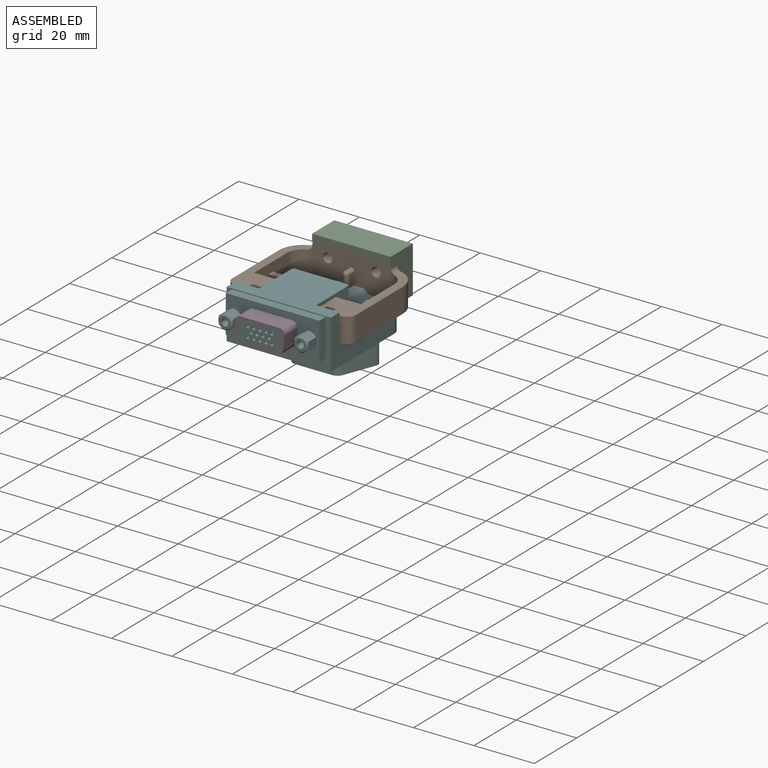
[diagram: assembled view]
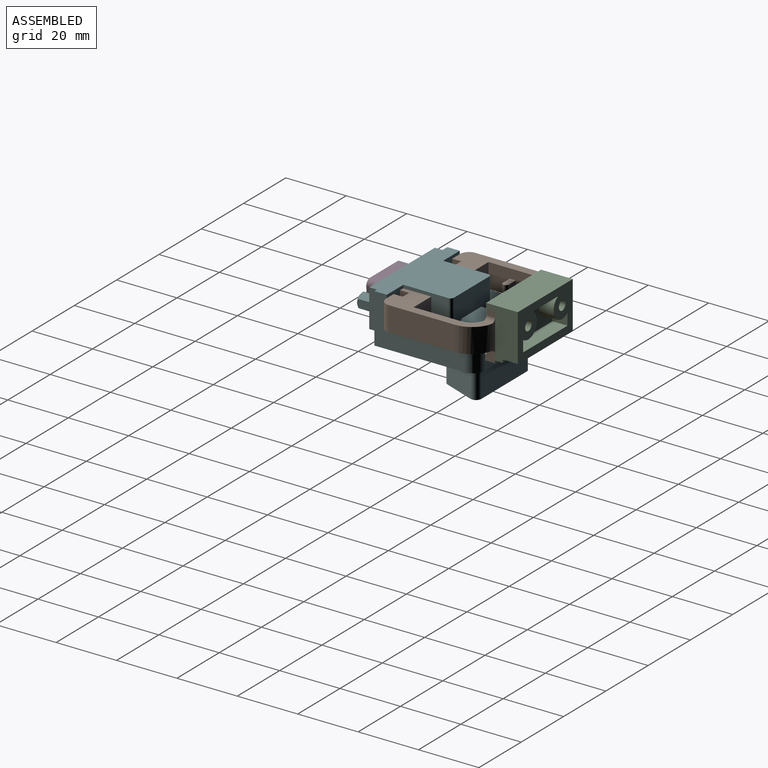
[diagram: assembled view, second angle]
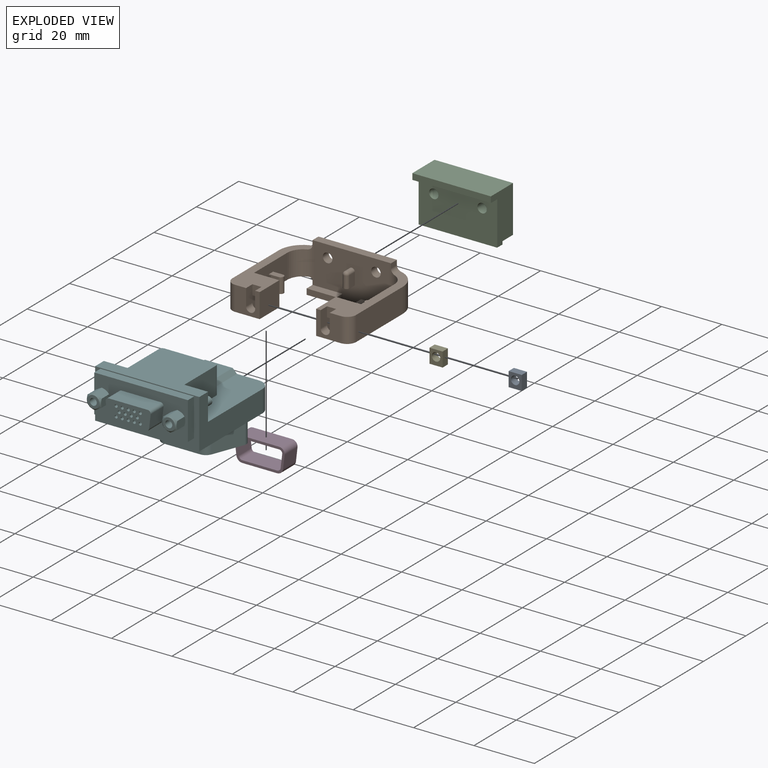
[diagram: exploded view]
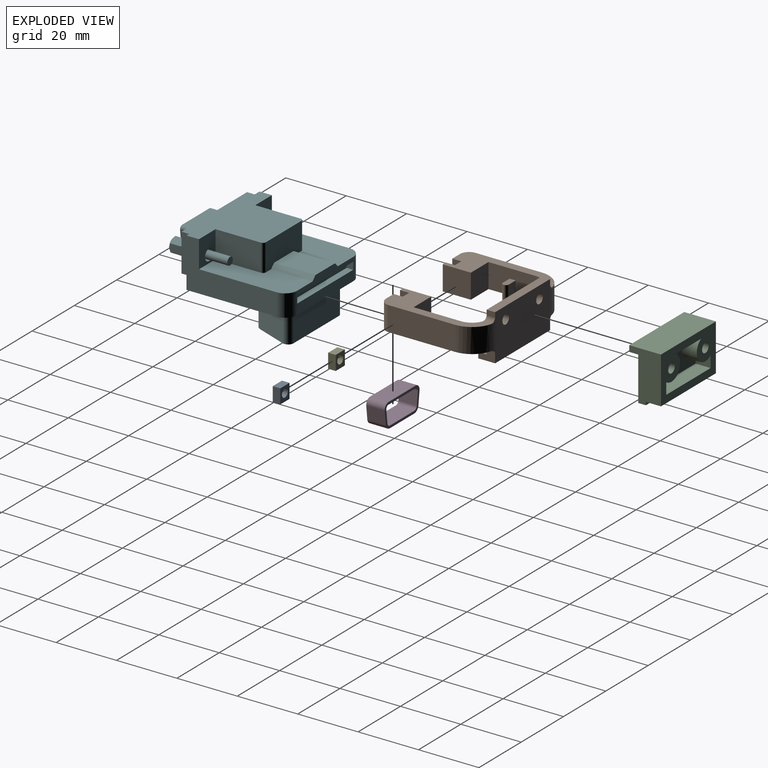
[diagram: exploded view, second angle]
ASSEMBLY  parts=6 mates=5
PART A: 7 faces, bbox 4.4x2.5x4.8 mm
  f0: cylinder r=1.4mm len=2.8mm, axis (0,-1,0), area 22mm2, adj f1,f6
  f1: plane 4.8x4.35mm, normal (0,-1,0), area 14.7mm2, adj f0,f2,f3,f4,f5
  f2: plane 4.35x2.5mm, normal (0,0,1), area 10.9mm2, adj f1,f3,f5,f6
  f3: plane 4.8x2.5mm, normal (-1,0,0), area 12mm2, adj f1,f2,f4,f6
  f4: plane 4.35x2.5mm, normal (0,0,-1), area 10.9mm2, adj f1,f3,f5,f6
  f5: plane 4.8x2.5mm, normal (1,0,0), area 12mm2, adj f1,f2,f4,f6
  f6: plane 4.8x4.35mm, normal (0,1,0), area 14.7mm2, adj f0,f2,f3,f4,f5
PART B: 80 faces, bbox 41x33x15.3 mm
  f0: cylinder r=1.57mm len=3.15mm, axis (0,-1,0), area 27.7mm2, adj f74,f79
  f1: cylinder r=1.57mm len=3.15mm, axis (0,-1,0), area 27.7mm2, adj f74,f79
  f2: cylinder r=1mm len=2.5mm, axis (0,1,0), area 7.9mm2, adj f6,f55,f57,f74
  f3: cylinder r=1.5mm len=3mm, axis (0,-1,0), area 14.1mm2, adj f36,f43,f47,f48
  f4: cylinder r=1mm len=5mm, axis (0,0,-1), area 15.7mm2, adj f13,f40,f41,f67
  f5: cylinder r=1.5mm len=3mm, axis (0,-1,0), area 14.1mm2, adj f17,f29,f31,f32
  f6: sphere r=1mm, area 3.1mm2, adj f2,f15
  f7: plane 4.8x0.73mm, normal (0,-1,0), area 3.5mm2, adj f10,f18,f19,f58
  f8: plane 4.8x0.73mm, normal (0,-1,0), area 3.5mm2, adj f10,f16,f21,f58
  f9: plane 4.2x2mm, normal (0,0,1), area 8mm2, adj f22,f23,f24,f26
  f10: plane 5.3x4.35mm, normal (0,0,-1), area 19mm2, adj f7,f8,f16,f17,f18,f19,f20,f21
  f11: plane 4.8x0.73mm, normal (0,-1,0), area 3.5mm2, adj f14,f34,f35,f67
  f12: plane 4.8x0.73mm, normal (0,-1,0), area 3.5mm2, adj f14,f37,f38,f67
  f13: plane 4.2x2mm, normal (0,0,1), area 8mm2, adj f4,f40,f41,f46
  f14: plane 5.3x4.35mm, normal (0,0,-1), area 19mm2, adj f11,f12,f34,f35,f36,f37,f38,f39
  f15: cylinder r=1mm len=4mm, axis (0,0,-1), area 12.6mm2, adj f6,f55,f56,f57
  f16: plane 4.8x2.5mm, normal (-1,0,0), area 12mm2, adj f8,f10,f17,f58
  f17: plane 4.8x4.35mm, normal (0,1,0), area 10.7mm2, adj f5,f10,f16,f18,f29,f31,f58
  f18: plane 4.8x2.5mm, normal (1,0,0), area 12mm2, adj f7,f10,f17,f58
  f19: plane 4.8x2.8mm, normal (1,0,0), area 13.4mm2, adj f7,f10,f20,f58
  f20: plane 4.8x2.9mm, normal (0,-1,0), area 13.9mm2, adj f10,f19,f21,f58
  f21: plane 4.8x2.8mm, normal (-1,0,0), area 13.4mm2, adj f8,f10,f20,f58
  f22: plane 5x3.2mm, normal (0,-1,0), area 16mm2, adj f9,f23,f26,f58
  f23: cylinder r=1mm len=5mm, axis (0,0,-1), area 15.7mm2, adj f9,f22,f24,f58
  f24: plane 5x3.2mm, normal (0,1,0), area 16mm2, adj f9,f23,f26,f58
  f25: cylinder r=3mm len=8.1mm, axis (0,0,-1), area 38.2mm2, adj f32,f58,f59,f60
  f26: plane 15.7x8.1mm, normal (1,0,0), area 117.2mm2, adj f9,f22,f24,f27,f52,f58,f60
  f27: plane 8.35x8.1mm, normal (0,1,0), area 67.6mm2, adj f26,f28,f58,f60
  f28: plane 9.3x8.1mm, normal (1,0,0), area 75.3mm2, adj f27,f32,f58,f60
  f29: plane 5.5x3mm, normal (-1,0,0), area 16.5mm2, adj f5,f17,f30,f32,f60
  f30: plane 3.3x3mm, normal (0,-1,0), area 9.9mm2, adj f10,f29,f31,f60
  f31: plane 5.5x3mm, normal (1,0,0), area 16.5mm2, adj f5,f17,f30,f32,f60
  f32: plane 8.15x8.1mm, normal (0,-1,0), area 46mm2, adj f5,f25,f28,f29,f31,f58,f60
  f33: cylinder r=1mm len=3.01mm, axis (0,-1,0), area 4.5mm2, adj f52,f58,f62,f75
  f34: plane 4.8x2.8mm, normal (-1,0,0), area 13.4mm2, adj f11,f14,f39,f67
  f35: plane 4.8x2.5mm, normal (-1,0,0), area 12mm2, adj f11,f14,f36,f67
  f36: plane 4.8x4.35mm, normal (0,1,0), area 10.7mm2, adj f3,f14,f35,f37,f43,f48,f67
  f37: plane 4.8x2.5mm, normal (1,0,0), area 12mm2, adj f12,f14,f36,f67
  f38: plane 4.8x2.8mm, normal (1,0,0), area 13.4mm2, adj f12,f14,f39,f67
  f39: plane 4.8x2.9mm, normal (0,-1,0), area 13.9mm2, adj f14,f34,f38,f67
  f40: plane 5x3.2mm, normal (0,1,0), area 16mm2, adj f4,f13,f46,f67
  f41: plane 5x3.2mm, normal (0,-1,0), area 16mm2, adj f4,f13,f46,f67
  f42: cylinder r=1mm len=3.01mm, axis (0,-1,0), area 4.5mm2, adj f53,f67,f68,f77
  f43: plane 5.5x3mm, normal (1,0,0), area 16.5mm2, adj f3,f36,f47,f49,f70
  f44: plane 9.3x8.1mm, normal (-1,0,0), area 75.3mm2, adj f45,f47,f67,f70
  f45: plane 8.35x8.1mm, normal (0,1,0), area 67.6mm2, adj f44,f46,f67,f70
  f46: plane 15.7x8.1mm, normal (-1,0,0), area 117.2mm2, adj f13,f40,f41,f45,f53,f67,f70
  f47: plane 8.15x8.1mm, normal (0,-1,0), area 46mm2, adj f3,f43,f44,f48,f50,f67,f70
  f48: plane 5.5x3mm, normal (-1,0,0), area 16.5mm2, adj f3,f36,f47,f49,f70
  f49: plane 3.3x3mm, normal (0,-1,0), area 9.9mm2, adj f14,f43,f48,f70
  f50: cylinder r=3mm len=8.1mm, axis (0,0,-1), area 38.2mm2, adj f47,f67,f70,f71
  f51: plane 9.93x2.8mm, normal (0,0,1), area 27.8mm2, adj f52,f62,f63,f64,f74
  f52: cylinder r=5.2mm len=13.4mm, axis (0,0,1), area 69.5mm2, adj f26,f33,f51,f58,f60,f61,f62,f73
  f53: cylinder r=5.2mm len=13.4mm, axis (0,0,1), area 69.5mm2, adj f42,f46,f54,f67,f68,f69,f70,f72
  f54: plane 9.93x2.8mm, normal (0,0,1), area 27.8mm2, adj f53,f65,f66,f68,f74
  f55: plane 4x2.5mm, normal (-1,0,0), area 10mm2, adj f2,f15,f56,f74
  f56: plane 3.5x2mm, normal (0,0,-1), area 6.6mm2, adj f15,f55,f57,f74
  f57: plane 4x2.5mm, normal (1,0,0), area 10mm2, adj f2,f15,f56,f74
  f58: plane 32.86x11.15mm, normal (0,0,-1), area 159.5mm2, adj f7,f8,f16,f17,f18,f19,f20,f21
  f59: plane 22x8.1mm, normal (-1,0,0), area 178.2mm2, adj f25,f58,f60,f75
  f60: plane 32.75x11.15mm, normal (0,0,1), area 160.1mm2, adj f25,f26,f27,f28,f29,f30,f31,f32
  f61: cylinder r=1.5mm len=3.18mm, axis (0,-1,0), area 6.8mm2, adj f52,f60,f73,f75
  f62: plane 5.58x3.15mm, normal (-1,0,0), area 14.1mm2, adj f33,f51,f52,f63,f75,f76
  f63: plane 9.93x1.9mm, normal (0,-1,0), area 18.9mm2, adj f51,f62,f64,f76
  f64: plane 2.8x1.9mm, normal (1,0,0), area 5.3mm2, adj f51,f63,f74,f76
  f65: plane 2.8x1.9mm, normal (-1,0,0), area 5.3mm2, adj f54,f66,f74,f76
  f66: plane 9.93x1.9mm, normal (0,-1,0), area 18.9mm2, adj f54,f65,f68,f76
  f67: plane 32.86x11.15mm, normal (0,0,-1), area 159.5mm2, adj f4,f11,f12,f34,f35,f36,f37,f38
  f68: plane 5.58x3.15mm, normal (1,0,0), area 14.1mm2, adj f42,f53,f54,f66,f76,f77
  f69: cylinder r=1.5mm len=3.18mm, axis (0,-1,0), area 6.8mm2, adj f53,f70,f72,f77
  f70: plane 32.75x11.15mm, normal (0,0,1), area 160.1mm2, adj f43,f44,f45,f46,f47,f48,f49,f50
  f71: plane 22x8.1mm, normal (1,0,0), area 178.2mm2, adj f50,f67,f70,f77
  f72: plane 2.81x1.55mm, normal (1,0,0), area 4.4mm2, adj f53,f69,f77,f78
  f73: plane 2.81x1.55mm, normal (-1,0,0), area 4.4mm2, adj f52,f61,f75,f78
  f74: plane 25x15.3mm, normal (0,-1,0), area 321.5mm2, adj f0,f1,f2,f51,f52,f53,f54,f55
  f75: cylinder r=8mm len=15.3mm, axis (0,0,-1), area 106.1mm2, adj f33,f58,f59,f60,f61,f62,f73,f76
  f76: plane 26x5.6mm, normal (0,0,-1), area 128.4mm2, adj f62,f63,f64,f65,f66,f68,f74,f75
  f77: cylinder r=8mm len=15.3mm, axis (0,0,-1), area 106.1mm2, adj f42,f67,f68,f69,f70,f71,f72,f76
  f78: plane 26x2.82mm, normal (0,0,1), area 72.8mm2, adj f52,f53,f72,f73,f74,f75,f77,f79
  f79: plane 25x15.3mm, normal (0,1,0), area 366.9mm2, adj f0,f1,f75,f76,f77,f78
PART C: 19 faces, bbox 26x10.5x16.5 mm
  f0: cylinder r=1.55mm len=7.5mm, axis (0,-1,0), area 73mm2, adj f12,f18
  f1: cylinder r=1.55mm len=7.5mm, axis (0,-1,0), area 73mm2, adj f12,f18
  f2: cylinder r=4.05mm len=7.55mm, axis (0,1,0), area 66.4mm2, adj f4,f7,f8,f12
  f3: cylinder r=4.05mm len=7.55mm, axis (0,1,0), area 66.4mm2, adj f4,f5,f8,f12
  f4: plane 21x10.5mm, normal (0,1,0), area 134.1mm2, adj f2,f3,f5,f6,f7,f8
  f5: plane 5x3.81mm, normal (1,0,0), area 19.1mm2, adj f3,f4,f6,f12
  f6: plane 21x5mm, normal (0,0,-1), area 105mm2, adj f4,f5,f7,f12
  f7: plane 5x3.81mm, normal (-1,0,0), area 19.1mm2, adj f2,f4,f6,f12
  f8: plane 11.92x5mm, normal (0,0,1), area 59.6mm2, adj f2,f3,f4,f12
  f9: plane 26x1mm, normal (0,1,0), area 26mm2, adj f13,f14,f15,f17
  f10: plane 26x2mm, normal (0,-1,0), area 52mm2, adj f11,f15,f16,f17
  f11: plane 26x10.5mm, normal (0,0,-1), area 273mm2, adj f10,f12,f15,f17
  f12: plane 26x15.5mm, normal (0,1,0), area 253.8mm2, adj f0,f1,f2,f3,f5,f6,f7,f8
  f13: plane 26x5mm, normal (0,0,1), area 130mm2, adj f9,f12,f15,f17
  f14: plane 26x2.5mm, normal (0,0,1), area 65mm2, adj f9,f15,f17,f18
  f15: plane 16.5x10.5mm, normal (1,0,0), area 124.7mm2, adj f9,f10,f11,f12,f13,f14,f16,f18
  f16: plane 26x3mm, normal (0,0,1), area 78mm2, adj f10,f15,f17,f18
  f17: plane 16.5x10.5mm, normal (-1,0,0), area 124.7mm2, adj f9,f10,f11,f12,f13,f14,f16,f18
  f18: plane 26x14.5mm, normal (0,-1,0), area 361.9mm2, adj f0,f1,f14,f15,f16,f17
PART D: 18 faces, bbox 16.5x8.1x6.1 mm
  f0: cylinder r=1mm len=6.1mm, axis (0,0,-1), area 10.3mm2, adj f13,f15,f16,f17
  f1: cylinder r=1.8mm len=6.1mm, axis (0,0,-1), area 18.5mm2, adj f2,f8,f15,f16
  f2: plane 6.1x4.32mm, normal (-0.99,-0.12,0), area 26.5mm2, adj f1,f3,f15,f16
  f3: cylinder r=2mm len=6.1mm, axis (0,0,-1), area 17.8mm2, adj f2,f4,f15,f16
  f4: plane 11.5x6.1mm, normal (0,-1,0), area 70.2mm2, adj f3,f5,f15,f16
  f5: cylinder r=2mm len=6.1mm, axis (0,0,-1), area 17.8mm2, adj f4,f6,f15,f16
  f6: plane 6.1x4.32mm, normal (0.99,-0.12,0), area 26.5mm2, adj f5,f7,f15,f16
  f7: cylinder r=1.8mm len=6.1mm, axis (0,0,-1), area 18.5mm2, adj f6,f8,f15,f16
  f8: plane 12.9x6.1mm, normal (0,1,0), area 78.7mm2, adj f1,f7,f15,f16
  f9: plane 6.1x4.32mm, normal (-0.99,0.12,0), area 26.5mm2, adj f10,f14,f15,f16
  f10: cylinder r=1.2mm len=6.1mm, axis (0,0,-1), area 10.7mm2, adj f9,f11,f15,f16
  f11: plane 11.5x6.1mm, normal (0,1,0), area 70.2mm2, adj f10,f12,f15,f16
  f12: cylinder r=1.2mm len=6.1mm, axis (0,0,-1), area 10.7mm2, adj f11,f13,f15,f16
  f13: plane 6.1x4.32mm, normal (0.99,0.12,0), area 26.5mm2, adj f0,f12,f15,f16
  f14: cylinder r=1mm len=6.1mm, axis (0,0,-1), area 10.3mm2, adj f9,f15,f16,f17
  f15: plane 16.5x8.1mm, normal (0,0,1), area 34mm2, adj f0,f1,f2,f3,f4,f5,f6,f7
  f16: plane 16.5x8.1mm, normal (0,0,-1), area 34mm2, adj f0,f1,f2,f3,f4,f5,f6,f7
  f17: plane 12.9x6.1mm, normal (0,-1,0), area 78.7mm2, adj f0,f14,f15,f16
PART E: 7 faces, bbox 4.4x2.5x4.8 mm
  f0: cylinder r=1.4mm len=2.8mm, axis (0,-1,0), area 22mm2, adj f1,f6
  f1: plane 4.8x4.35mm, normal (0,-1,0), area 14.7mm2, adj f0,f2,f3,f4,f5
  f2: plane 4.35x2.5mm, normal (0,0,1), area 10.9mm2, adj f1,f3,f5,f6
  f3: plane 4.8x2.5mm, normal (-1,0,0), area 12mm2, adj f1,f2,f4,f6
  f4: plane 4.35x2.5mm, normal (0,0,-1), area 10.9mm2, adj f1,f3,f5,f6
  f5: plane 4.8x2.5mm, normal (1,0,0), area 12mm2, adj f1,f2,f4,f6
  f6: plane 4.8x4.35mm, normal (0,1,0), area 14.7mm2, adj f0,f2,f3,f4,f5
PART F: 154 faces, bbox 34.8x26.8x43.1 mm
  f0: cylinder r=1.9mm len=7.02mm, axis (0,0,1), area 83.8mm2, adj f90,f130
  f1: cylinder r=1.9mm len=7.02mm, axis (0,0,1), area 83.8mm2, adj f89,f124
  f2: cone r=2.72mm half-angle=45deg, axis (0,0,1), area 9.1mm2, adj f62,f63,f85,f86,f87,f88,f116
  f3: cone r=2.72mm half-angle=45deg, axis (0,0,1), area 9.1mm2, adj f60,f61,f81,f82,f83,f84,f116
  f4: cylinder r=0.5mm len=8.1mm, axis (0,1,0), area 25.4mm2, adj f78,f104
  f5: cylinder r=0.5mm len=8.1mm, axis (0,1,0), area 25.4mm2, adj f77,f104
  f6: cylinder r=0.5mm len=8.1mm, axis (0,1,0), area 25.4mm2, adj f76,f104
  f7: cylinder r=0.5mm len=8.1mm, axis (0,1,0), area 25.4mm2, adj f75,f104
  f8: cylinder r=0.5mm len=8.1mm, axis (0,1,0), area 25.4mm2, adj f74,f104
  f9: cylinder r=0.5mm len=8.1mm, axis (0,1,0), area 25.4mm2, adj f73,f104
  f10: cylinder r=0.5mm len=8.1mm, axis (0,1,0), area 25.4mm2, adj f72,f104
  f11: cylinder r=0.5mm len=8.1mm, axis (0,1,0), area 25.4mm2, adj f71,f104
  f12: cylinder r=0.5mm len=8.1mm, axis (0,1,0), area 25.4mm2, adj f70,f104
  f13: cylinder r=0.5mm len=8.1mm, axis (0,1,0), area 25.4mm2, adj f69,f104
  f14: cylinder r=0.5mm len=8.1mm, axis (0,1,0), area 25.4mm2, adj f68,f104
  f15: cylinder r=0.5mm len=8.1mm, axis (0,1,0), area 25.4mm2, adj f67,f104
  f16: cylinder r=0.5mm len=8.1mm, axis (0,1,0), area 25.4mm2, adj f66,f104
  f17: cylinder r=0.5mm len=8.1mm, axis (0,1,0), area 25.4mm2, adj f65,f104
  f18: cylinder r=0.5mm len=8.1mm, axis (0,1,0), area 25.4mm2, adj f64,f104
  f19: cylinder r=1mm len=6.1mm, axis (0,0,-1), area 10.3mm2, adj f80,f94,f95,f116
  f20: cylinder r=1.3mm len=14mm, axis (0,0,1), area 114.4mm2, adj f59,f90
  f21: cylinder r=1.3mm len=14mm, axis (0,0,1), area 114.4mm2, adj f58,f89
  f22: cone r=2.72mm half-angle=45deg, axis (0,0,-1), area 9.1mm2, adj f57,f62,f63,f85,f86,f87,f88
  f23: cone r=2.72mm half-angle=45deg, axis (0,0,-1), area 9.1mm2, adj f56,f60,f61,f81,f82,f83,f84
  f24: cylinder r=0.5mm len=6.5mm, axis (0,0,1), area 20.4mm2, adj f55,f80
  f25: cylinder r=0.5mm len=6.5mm, axis (0,0,1), area 20.4mm2, adj f54,f80
  f26: cylinder r=0.5mm len=6.5mm, axis (0,0,1), area 20.4mm2, adj f53,f80
  f27: cylinder r=0.5mm len=6.5mm, axis (0,0,1), area 20.4mm2, adj f52,f80
  f28: cylinder r=0.5mm len=6.5mm, axis (0,0,1), area 20.4mm2, adj f51,f80
  f29: cylinder r=0.5mm len=6.5mm, axis (0,0,1), area 20.4mm2, adj f50,f80
  f30: cylinder r=0.5mm len=6.5mm, axis (0,0,1), area 20.4mm2, adj f49,f80
  f31: cylinder r=0.5mm len=6.5mm, axis (0,0,1), area 20.4mm2, adj f48,f80
  f32: cylinder r=0.5mm len=6.5mm, axis (0,0,1), area 20.4mm2, adj f47,f80
  f33: cylinder r=0.5mm len=6.5mm, axis (0,0,1), area 20.4mm2, adj f46,f80
  f34: cylinder r=0.5mm len=6.5mm, axis (0,0,1), area 20.4mm2, adj f45,f80
  f35: cylinder r=0.5mm len=6.5mm, axis (0,0,1), area 20.4mm2, adj f44,f80
  f36: cylinder r=0.5mm len=6.5mm, axis (0,0,1), area 20.4mm2, adj f43,f80
  f37: cylinder r=0.5mm len=6.5mm, axis (0,0,1), area 20.4mm2, adj f42,f80
  f38: cylinder r=1.15mm len=3.5mm, axis (0,0,1), area 25.3mm2, adj f41,f57
  f39: cylinder r=1.15mm len=3.5mm, axis (0,0,1), area 25.3mm2, adj f40,f56
  f40: plane 2.3x2.3mm, normal (0,0,1), area 4.2mm2, adj f39
  f41: plane 2.3x2.3mm, normal (0,0,1), area 4.2mm2, adj f38
  f42: plane 1x1mm, normal (0,0,1), area 0.8mm2, adj f37
  f43: plane 1x1mm, normal (0,0,1), area 0.8mm2, adj f36
  f44: plane 1x1mm, normal (0,0,1), area 0.8mm2, adj f35
  f45: plane 1x1mm, normal (0,0,1), area 0.8mm2, adj f34
  f46: plane 1x1mm, normal (0,0,1), area 0.8mm2, adj f33
  f47: plane 1x1mm, normal (0,0,1), area 0.8mm2, adj f32
  f48: plane 1x1mm, normal (0,0,1), area 0.8mm2, adj f31
  f49: plane 1x1mm, normal (0,0,1), area 0.8mm2, adj f30
  f50: plane 1x1mm, normal (0,0,1), area 0.8mm2, adj f29
  f51: plane 1x1mm, normal (0,0,1), area 0.8mm2, adj f28
  f52: plane 1x1mm, normal (0,0,1), area 0.8mm2, adj f27
  f53: plane 1x1mm, normal (0,0,1), area 0.8mm2, adj f26
  f54: plane 1x1mm, normal (0,0,1), area 0.8mm2, adj f25
  f55: plane 1x1mm, normal (0,0,1), area 0.8mm2, adj f24
  f56: plane 4.07x4.07mm, normal (0,0,1), area 8.9mm2, adj f23,f39
  f57: plane 4.07x4.07mm, normal (0,0,1), area 8.9mm2, adj f22,f38
  f58: plane 2.6x2.6mm, normal (0,0,-1), area 5.3mm2, adj f21
  f59: plane 2.6x2.6mm, normal (0,0,-1), area 5.3mm2, adj f20
  f60: plane 4.39x2.98mm, normal (-1,0,0), area 10.5mm2, adj f3,f23,f82,f83
  f61: plane 4.39x2.98mm, normal (1,0,0), area 10.5mm2, adj f3,f23,f81,f84
  f62: plane 4.39x2.98mm, normal (-1,0,0), area 10.5mm2, adj f2,f22,f86,f87
  f63: plane 4.39x2.98mm, normal (1,0,0), area 10.5mm2, adj f2,f22,f85,f88
  f64: sphere r=0.5mm, area 1.6mm2, adj f18
  f65: sphere r=0.5mm, area 1.6mm2, adj f17
  f66: sphere r=0.5mm, area 1.6mm2, adj f16
  f67: sphere r=0.5mm, area 1.6mm2, adj f15
  f68: sphere r=0.5mm, area 1.6mm2, adj f14
  f69: sphere r=0.5mm, area 1.6mm2, adj f13
  f70: sphere r=0.5mm, area 1.6mm2, adj f12
  f71: sphere r=0.5mm, area 1.6mm2, adj f11
  f72: sphere r=0.5mm, area 1.6mm2, adj f10
  f73: sphere r=0.5mm, area 1.6mm2, adj f9
  f74: sphere r=0.5mm, area 1.6mm2, adj f8
  f75: sphere r=0.5mm, area 1.6mm2, adj f7
  f76: sphere r=0.5mm, area 1.6mm2, adj f6
  f77: sphere r=0.5mm, area 1.6mm2, adj f5
  f78: sphere r=0.5mm, area 1.6mm2, adj f4
  f79: cylinder r=1mm len=6.1mm, axis (0,0,-1), area 10.3mm2, adj f80,f95,f96,f116
  f80: plane 14.9x6.5mm, normal (0,0,1), area 81.5mm2, adj f19,f24,f25,f26,f27,f28,f29,f30
  f81: plane 4.12x2.35mm, normal (0.5,-0.87,0), area 10.5mm2, adj f3,f23,f61,f82
  f82: plane 4.12x2.35mm, normal (-0.5,-0.87,0), area 10.5mm2, adj f3,f23,f60,f81
  f83: plane 4.12x2.35mm, normal (-0.5,0.87,0), area 10.5mm2, adj f3,f23,f60,f84
  f84: plane 4.12x2.35mm, normal (0.5,0.87,0), area 10.5mm2, adj f3,f23,f61,f83
  f85: plane 4.12x2.35mm, normal (0.5,-0.87,0), area 10.5mm2, adj f2,f22,f63,f86
  f86: plane 4.12x2.35mm, normal (-0.5,-0.87,0), area 10.5mm2, adj f2,f22,f62,f85
  f87: plane 4.12x2.35mm, normal (-0.5,0.87,0), area 10.5mm2, adj f2,f22,f62,f88
  f88: plane 4.12x2.35mm, normal (0.5,0.87,0), area 10.5mm2, adj f2,f22,f63,f87
  f89: plane 3.8x3.8mm, normal (0,0,-1), area 6mm2, adj f1,f21
  f90: plane 3.8x3.8mm, normal (0,0,-1), area 6mm2, adj f0,f20
  f91: plane 13.73x9.2mm, normal (0,1,0), area 126.3mm2, adj f105,f108,f109,f110
  f92: cylinder r=1mm len=9mm, axis (0,1,0), area 14.1mm2, adj f110,f111,f125,f131
  f93: cylinder r=1mm len=9mm, axis (0,1,0), area 14.1mm2, adj f110,f112,f129,f131
  f94: plane 6.1x4.32mm, normal (-0.99,-0.12,0), area 26.5mm2, adj f19,f80,f99,f116
  f95: plane 12.9x6.1mm, normal (0,1,0), area 78.7mm2, adj f19,f79,f80,f116
  f96: plane 6.1x4.32mm, normal (0.99,-0.12,0), area 26.5mm2, adj f79,f80,f97,f116
  f97: cylinder r=1.2mm len=6.1mm, axis (0,0,-1), area 10.7mm2, adj f80,f96,f98,f116
  f98: plane 11.5x6.1mm, normal (0,-1,0), area 70.2mm2, adj f80,f97,f99,f116
  f99: cylinder r=1.2mm len=6.1mm, axis (0,0,-1), area 10.7mm2, adj f80,f94,f98,f116
  f100: cylinder r=0.18mm len=10.22mm, axis (0,-1,0), area 3.6mm2, adj f104,f120,f121,f138
  f101: cylinder r=1.08mm len=10.22mm, axis (0,-1,0), area 13.3mm2, adj f104,f121,f122,f138
  f102: cylinder r=1.08mm len=10.22mm, axis (0,-1,0), area 13.3mm2, adj f104,f122,f123,f138
  f103: cylinder r=0.18mm len=10.22mm, axis (0,-1,0), area 3.6mm2, adj f104,f120,f123,f138
  f104: plane 21.8x11.1mm, normal (0,-1,0), area 184.7mm2, adj f4,f5,f6,f7,f8,f9,f10,f11
  f105: plane 13.73x1.4mm, normal (-0.71,0.71,0), area 27.2mm2, adj f91,f109,f110,f125
  f106: plane 26.5x2.2mm, normal (0,-1,0), area 58.3mm2, adj f107,f109,f126,f128
  f107: plane 26.5x2.4mm, normal (0,0,-1), area 63.6mm2, adj f106,f126,f127,f128
  f108: plane 13.73x1.4mm, normal (0.71,0.71,0), area 27.2mm2, adj f91,f109,f110,f129
  f109: plane 26.5x2.85mm, normal (0,0,-1), area 53.3mm2, adj f91,f105,f106,f108,f125,f129,f140,f142
  f110: plane 16.8x9mm, normal (0,0,-1), area 136.4mm2, adj f91,f92,f93,f105,f108,f125,f129,f131
  f111: plane 15x9mm, normal (-1,0,0), area 135mm2, adj f92,f124,f125,f131
  f112: plane 15x9mm, normal (1,0,0), area 135mm2, adj f93,f129,f130,f131
  f113: plane 2.5x1.3mm, normal (-1,0,0), area 3.2mm2, adj f114,f135,f136,f144
  f114: plane 3.6x1.3mm, normal (0,0,-1), area 4.7mm2, adj f113,f115,f135,f136
  f115: plane 2.5x1.3mm, normal (1,0,0), area 3.3mm2, adj f114,f135,f136,f144
  f116: plane 31x12.5mm, normal (0,0,1), area 269mm2, adj f2,f3,f19,f79,f94,f95,f96,f97
  f117: plane 2.5x1.3mm, normal (1,0,0), area 3.3mm2, adj f118,f136,f137,f144
  f118: plane 3.6x1.3mm, normal (0,0,-1), area 4.7mm2, adj f117,f119,f136,f137
  f119: plane 2.5x1.3mm, normal (-1,0,0), area 3.2mm2, adj f118,f136,f137,f144
  f120: plane 21.44x10.22mm, normal (0,0,1), area 219.1mm2, adj f100,f103,f104,f138
  f121: plane 10.22x10.16mm, normal (0.93,0,-0.36), area 111.2mm2, adj f100,f101,f104,f138
  f122: plane 12x10.22mm, normal (0,0,-1), area 122.6mm2, adj f101,f102,f104,f138
  f123: plane 10.22x10.16mm, normal (-0.93,0,-0.36), area 111.2mm2, adj f102,f103,f104,f138
  f124: plane 9x7.85mm, normal (0,0,-1), area 59.3mm2, adj f1,f111,f125,f131,f139
  f125: plane 29.73x11.25mm, normal (0,1,0), area 276.8mm2, adj f92,f105,f109,f110,f111,f124,f139,f140
  f126: plane 2.4x2.2mm, normal (1,0,0), area 5.3mm2, adj f106,f107,f127,f140
  f127: plane 26.5x2.2mm, normal (0,1,0), area 58.3mm2, adj f107,f126,f128,f141
  f128: plane 2.4x2.2mm, normal (-1,0,0), area 5.3mm2, adj f106,f107,f127,f142
  f129: plane 29.73x11.25mm, normal (0,1,0), area 276.8mm2, adj f93,f108,f109,f110,f112,f130,f142,f143
  f130: plane 9x7.85mm, normal (0,0,-1), area 59.3mm2, adj f0,f112,f129,f131,f143
  f131: plane 34.5x20.12mm, normal (0,1,0), area 442.5mm2, adj f92,f93,f110,f111,f112,f124,f130,f139
  f132: plane 12.5x2.9mm, normal (-1,0,0), area 36.2mm2, adj f116,f133,f136,f144
  f133: plane 31x2.9mm, normal (0,1,0), area 89.9mm2, adj f116,f132,f134,f144
  f134: plane 12.5x2.9mm, normal (1,0,0), area 36.2mm2, adj f116,f133,f136,f144
  f135: plane 3.6x2.5mm, normal (0,-1,0), area 9mm2, adj f113,f114,f115,f144
  f136: plane 31x2.9mm, normal (0,-1,0), area 71.9mm2, adj f113,f114,f115,f116,f117,f118,f119,f132
  f137: plane 3.6x2.5mm, normal (0,-1,0), area 9mm2, adj f117,f118,f119,f144
  f138: plane 25x14.3mm, normal (0,-1,0), area 101.6mm2, adj f100,f101,f102,f103,f120,f121,f122,f123
  f139: plane 29.85x16.28mm, normal (-1,0,0), area 254.4mm2, adj f124,f125,f131,f140,f144,f153
  f140: cylinder r=4mm len=7.28mm, axis (0,1,0), area 45.7mm2, adj f109,f125,f126,f139,f141,f153
  f141: plane 26.5x3.43mm, normal (0,0,-1), area 90.9mm2, adj f127,f140,f142,f153
  f142: cylinder r=4mm len=7.28mm, axis (0,-1,0), area 45.7mm2, adj f109,f128,f129,f141,f143,f153
  f143: plane 29.85x16.28mm, normal (1,0,0), area 254.4mm2, adj f129,f130,f131,f142,f144,f153
  f144: plane 34.5x16.28mm, normal (0,0,1), area 183.5mm2, adj f113,f115,f117,f119,f131,f132,f133,f134
  f145: plane 10.22x10.16mm, normal (0.93,0,0.36), area 111.2mm2, adj f138,f146,f152,f153
  f146: cylinder r=1.78mm len=10.22mm, axis (0,1,0), area 35.2mm2, adj f138,f145,f147,f153
  f147: plane 21.44x10.22mm, normal (0,0,-1), area 219.1mm2, adj f138,f146,f148,f153
  f148: cylinder r=1.78mm len=10.22mm, axis (0,1,0), area 35.2mm2, adj f138,f147,f149,f153
  f149: plane 10.22x10.16mm, normal (-0.93,0,0.36), area 111.2mm2, adj f138,f148,f150,f153
  f150: cylinder r=2.68mm len=10.22mm, axis (0,1,0), area 33mm2, adj f138,f149,f151,f153
  f151: plane 12x10.22mm, normal (0,0,1), area 122.6mm2, adj f138,f150,f152,f153
  f152: cylinder r=2.68mm len=10.22mm, axis (0,1,0), area 33mm2, adj f138,f145,f151,f153
  f153: plane 34.5x33.85mm, normal (0,-1,0), area 862.8mm2, adj f139,f140,f141,f142,f143,f144,f145,f146
PLACE A t=(-8.22,0.2,-47)mm
PLACE B t=(-8.22,0.2,-47)mm
PLACE C rot(axis=(0,1,0),180deg) t=(-8.22,16.7,-39.35)mm
PLACE D rot(axis=(1,0,0),90deg) t=(-8.37,-20.42,-49.54)mm
PLACE E t=(-8.22,0.2,-47)mm
PLACE F rot(axis=(1,0,0),90deg) t=(-8.37,-20.42,-49.54)mm
MATE fastened E.f0 <-> B.f5  axis (0,-1,0) through (-20.57,-13.3,-47.9)mm
MATE fastened F.f95 <-> D.f17  axis (0,0,1) through (-8.37,-26.37,-44.7)mm
MATE fastened B.f3 <-> F.f0  axis (0,-1,0) through (4.13,-16.3,-47.9)mm
MATE fastened C.f0 <-> B.f0  axis (0,-1,0) through (-16.22,16.7,-43.35)mm
MATE fastened A.f0 <-> B.f3  axis (0,-1,0) through (4.13,-13.3,-47.9)mm
